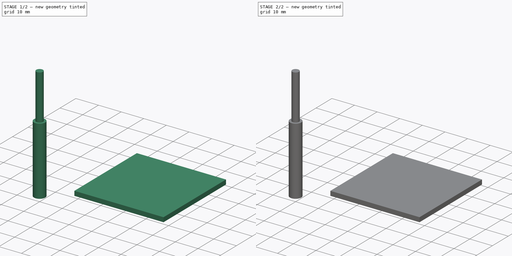
[diagram: build sequence overview — one tinted view per stage of 2, left to right]
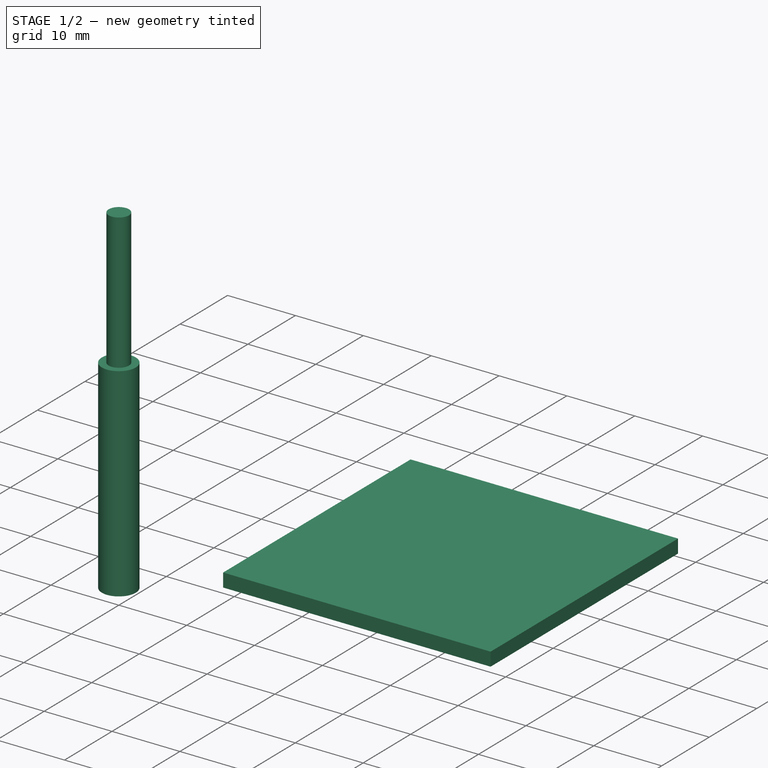
[diagram: stage 1 of 2 — iso view after this stage's code; geometry added in this stage tinted green]
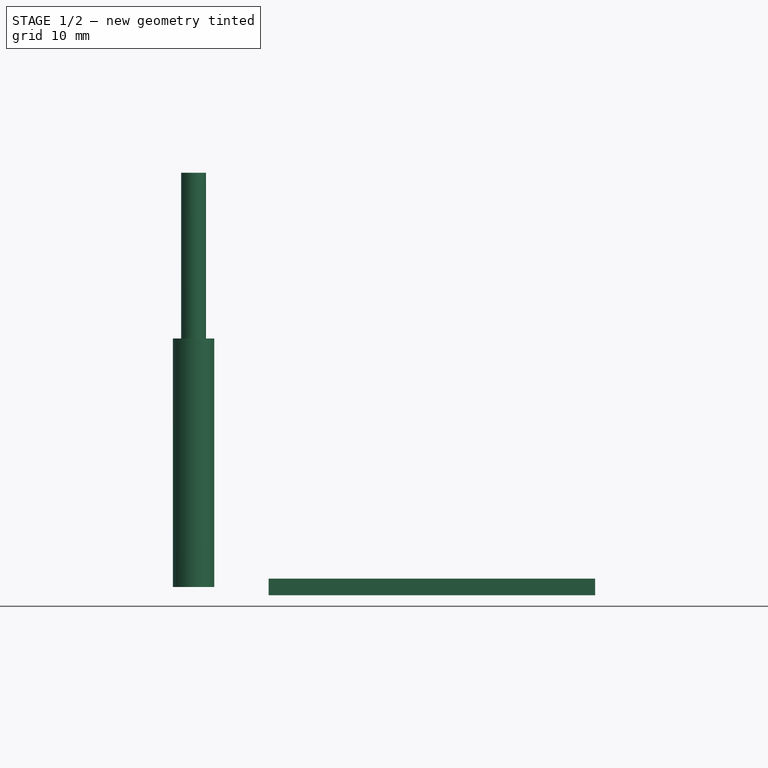
[diagram: stage 1 of 2 — front view after this stage's code; geometry added in this stage tinted green]
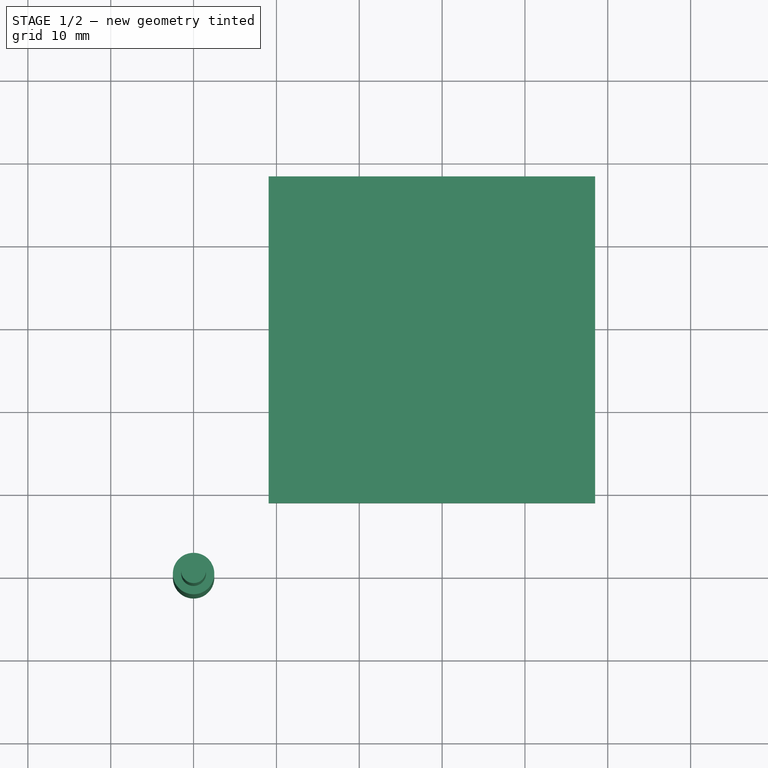
[diagram: stage 1 of 2 — top view after this stage's code; geometry added in this stage tinted green]
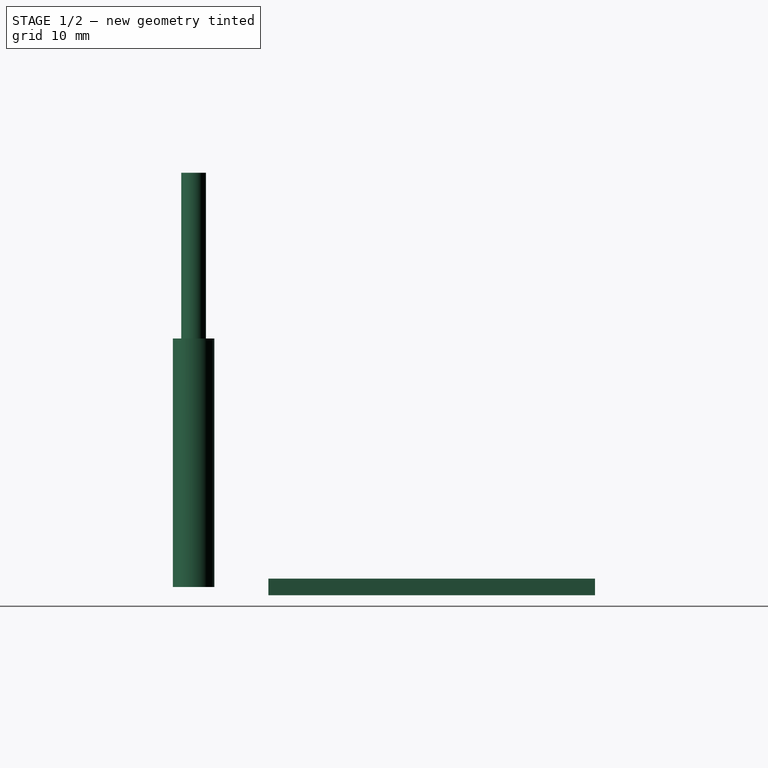
[diagram: stage 1 of 2 — right view after this stage's code; geometry added in this stage tinted green]
FCSTD DOCUMENT  (FreeCAD 0.20R29603 (Git))
Label: KeyboardLabels_ABXY_PSP_StartHomePlay
License: All rights reserved
LicenseURL: http://en.wikipedia.org/wiki/All_rights_reserved
objects: Sketcher::SketchObject×12, Part::Part2DObjectPython×6, App::DocumentObjectGroup×6, Path::FeaturePython×6, Part::FeaturePython×4, App::FeaturePython×2
note: 22 computed .brp shape members not serialized (recipe doc carries the construction recipe); baked Part::Feature solids carry a one-line shape summary decoded from their .brp

FEATURE [Path::FeaturePython] Engrave  # Path/CAM operation (typed FeaturePython)
  Active = true
  ClearanceHeight = 6
  CoolantMode = 0
  CycleTime = Cycletime Error
  FinalDepth = -5
  OpFinalDepth = -5
  OpStartDepth = 0
  OpStockZMax = 1
  OpStockZMin = -1
  OpToolDiameter = 5
  SafeHeight = 4
  StartDepth = 0
  StartVertex = 0
  StepDown = 5
  ToolController = -> TC__Default_Tool
  expr: ClearanceHeight = OpStockZMax + SetupSheet.ClearanceHeightOffset
  expr: FinalDepth = OpFinalDepth
  expr: SafeHeight = OpStockZMax + SetupSheet.SafeHeightOffset
  expr: StartDepth = OpStartDepth
  expr: StepDown = OpToolDiameter
FEATURE [App::DocumentObjectGroup] Operations
  Group = -> [Engrave]
FEATURE [Path::FeaturePython] Job  label="Job_PSP_SYM"  # Path/CAM operation (typed FeaturePython)
  CycleTime = 00:00:00
  Fixtures = G54
  GeometryTolerance = 0.01
  JobType = 0
  Model = -> Model
  Operations = -> Operations
  OrderOutputBy = 0
  PostProcessor = 1
  SetupSheet = -> SetupSheet
  SplitOutput = false
  Stock = -> Stock
  Tools = -> Tools
FEATURE [Part::Part2DObjectPython] Clone2D001  label="Model-psp_symbols_outline002"  # Draft 2D object (typed FeaturePython)
  Fuse = false
  Objects = -> [Sketch013]
  PathResource = Model
  Scale = (1,1,1)
FEATURE [App::DocumentObjectGroup] Model001
  Group = -> [Clone2D001]
FEATURE [Part::FeaturePython] Stock001  # WARN: FeaturePython — macro-defined, semantics opaque (R4)
  Base = -> Model001
  ExtXneg = 1
  ExtXpos = 1
  ExtYneg = 1
  ExtYpos = 1
  ExtZneg = 1
  ExtZpos = 1
  Placement = pos=(10.0608,10.0152,0) rot=(0,0,1;0rad)
  StockType = FromBase
FEATURE [Part::FeaturePython] ToolBit001  label="Endmill001"  # Path/CAM toolbit (typed FeaturePython)
  BitPropertyNames = Chipload | CuttingEdgeHeight | Diameter | Flutes | Length | Material | ShankDiameter | SpindleDirection
  BitShape = <path> 0.20.0/Mod\Path\Tools\Shape\endmill.fcstd
  Chipload = 0
  CuttingEdgeHeight = 30
  Diameter = 5
  Flutes = 0
  Length = 50
  Material = 0
  ShankDiameter = 3
  ShapeName = endmill
  SpindleDirection = 0
FEATURE [Path::FeaturePython] TC__Default_Tool001  label="TC: Default Tool001"  # Path/CAM operation (typed FeaturePython)
  HorizFeed = 0
  HorizRapid = 0
  SpindleDir = 0
  SpindleSpeed = 0
  Tool = -> ToolBit001
  ToolNumber = 1
  VertFeed = 0
  VertRapid = 0
  expr: HorizRapid = SetupSheet001.HorizRapid
  expr: VertRapid = SetupSheet001.VertRapid
FEATURE [App::DocumentObjectGroup] Tools001
  Group = -> [TC__Default_Tool001]
FEATURE [App::FeaturePython] SetupSheet001  # Path/CAM operation (typed FeaturePython)
  ClearanceHeightExpression = OpStockZMax+SetupSheet001.ClearanceHeightOffset
  ClearanceHeightOffset = 5
  CoolantMode = 0
  CoolantModes = None | Flood | Mist
  FinalDepthExpression = OpFinalDepth
  HorizRapid = 0
  SafeHeightExpression = OpStockZMax+SetupSheet001.SafeHeightOffset
  SafeHeightOffset = 3
  StartDepthExpression = OpStartDepth
  StepDownExpression = OpToolDiameter
  VertRapid = 0
FEATURE [Path::FeaturePython] Engrave001  # Path/CAM operation (typed FeaturePython)
  Active = true
  ClearanceHeight = 6
  CoolantMode = 0
  CycleTime = Cycletime Error
  FinalDepth = -5
  OpFinalDepth = -5
  OpStartDepth = 0
  OpStockZMax = 1
  OpStockZMin = -1
  OpToolDiameter = 5
  SafeHeight = 4
  StartDepth = 0
  StartVertex = 0
  StepDown = 5
  ToolController = -> TC__Default_Tool001
  expr: ClearanceHeight = OpStockZMax + SetupSheet001.ClearanceHeightOffset
  expr: FinalDepth = OpFinalDepth
  expr: SafeHeight = OpStockZMax + SetupSheet001.SafeHeightOffset
  expr: StartDepth = OpStartDepth
  expr: StepDown = OpToolDiameter
FEATURE [App::DocumentObjectGroup] Operations001
  Group = -> [Engrave001]
FEATURE [Path::FeaturePython] Job001  # Path/CAM operation (typed FeaturePython)
  CycleTime = 00:00:00
  Fixtures = G54
  GeometryTolerance = 0.01
  JobType = 0
  Model = -> Model001
  Operations = -> Operations001
  OrderOutputBy = 0
  PostProcessor = 1
  SetupSheet = -> SetupSheet001
  SplitOutput = false
  Stock = -> Stock001
  Tools = -> Tools001
FEATURE [Sketcher::SketchObject] Sketch014  label="psp_symbols001"
  FullyConstrained = false
  MapMode = 5
  Support = -> [XY_Plane010]
  sketch-geometry (39):
    g0: Circle CenterX=28.0733 CenterY=38.9348 CenterZ=0 NormalX=0 NormalY=0 NormalZ=1 AngleXU=0 Radius=6
    g1: Circle CenterX=18.0733 CenterY=28.9348 CenterZ=0 NormalX=0 NormalY=0 NormalZ=1 AngleXU=0 Radius=6
    g2: Circle CenterX=28.0733 CenterY=18.9348 CenterZ=0 NormalX=0 NormalY=0 NormalZ=1 AngleXU=0 Radius=6
    g3: Circle CenterX=28.0733 CenterY=18.9348 CenterZ=0 NormalX=0 NormalY=0 NormalZ=1 AngleXU=0 Radius=6
    g4: LineSegment StartX=18.0733 StartY=28.9348 StartZ=0 EndX=28.0733 EndY=28.9348 EndZ=0
    g5: LineSegment StartX=28.0733 StartY=28.9348 StartZ=0 EndX=38.0733 EndY=28.9348 EndZ=0
    g6: LineSegment StartX=28.0733 StartY=28.9348 StartZ=0 EndX=28.0733 EndY=38.9348 EndZ=0
    g7: LineSegment StartX=28.0733 StartY=28.9348 StartZ=0 EndX=28.0733 EndY=18.9348 EndZ=0
    g8: Circle CenterX=38.0733 CenterY=28.9348 CenterZ=0 NormalX=0 NormalY=0 NormalZ=1 AngleXU=0 Radius=6
    g9: LineSegment StartX=36.6319 StartY=34.7591 StartZ=0 EndX=32.8783 EndY=25.82 EndZ=0
    g10: LineSegment StartX=32.8783 StartY=25.82 StartZ=0 EndX=35.4501 EndY=25.82 EndZ=0
    g11: LineSegment StartX=43.2684 StartY=25.82 StartZ=0 EndX=39.5148 EndY=34.7591 EndZ=0
    g12: Circle CenterX=38.0733 CenterY=28.9348 CenterZ=0 NormalX=0 NormalY=0 NormalZ=1 AngleXU=0 Radius=6.05727
    g13: LineSegment StartX=35.4501 StartY=25.82 StartZ=0 EndX=36.6319 EndY=28.0354 EndZ=0
    g14: LineSegment StartX=36.6319 StartY=28.0354 StartZ=0 EndX=38.0733 EndY=28.0354 EndZ=0
    g15: LineSegment StartX=38.0733 StartY=28.0354 StartZ=0 EndX=39.5148 EndY=28.0354 EndZ=0
    g16: LineSegment StartX=39.5148 StartY=28.0354 StartZ=0 EndX=40.6965 EndY=25.82 EndZ=0
    g17: LineSegment StartX=40.6965 StartY=25.82 StartZ=0 EndX=43.2684 EndY=25.82 EndZ=0
    g18: LineSegment StartX=36.6319 StartY=34.7591 StartZ=0 EndX=39.5148 EndY=34.7591 EndZ=0
    g19: LineSegment StartX=25.0057 StartY=24.0914 StartZ=0 EndX=29.7113 EndY=24.0914 EndZ=0
    g20: LineSegment StartX=32.1836 StartY=21.6191 StartZ=0 EndX=32.1836 EndY=21.0295 EndZ=0
    g21: LineSegment StartX=29.7634 StartY=13.7783 StartZ=0 EndX=25.0057 EndY=13.7783 EndZ=0
    g22: LineSegment StartX=25.0057 StartY=13.7783 StartZ=0 EndX=25.0057 EndY=24.0914 EndZ=0
    g23: ArcOfCircle CenterX=29.7113 CenterY=21.6191 CenterZ=0 NormalX=0 NormalY=0 NormalZ=1 AngleXU=0 Radius=2.47232 StartAngle=1e-16 EndAngle=1.5708
    g24: ArcOfCircle CenterX=29.7634 CenterY=16.2506 CenterZ=0 NormalX=0 NormalY=0 NormalZ=1 AngleXU=0 Radius=2.47232 StartAngle=4.71239 EndAngle=6.07751
    g25: LineSegment StartX=32.1836 StartY=16.3352 StartZ=0 EndX=32.1836 EndY=15.7457 EndZ=0
    g26: ArcOfCircle CenterX=29.7634 CenterY=21.0295 CenterZ=0 NormalX=0 NormalY=0 NormalZ=1 AngleXU=0 Radius=2.42021 StartAngle=4.71239 EndAngle=6.28319
    g27: ArcOfCircle CenterX=29.7634 CenterY=16.3352 CenterZ=0 NormalX=0 NormalY=0 NormalZ=1 AngleXU=0 Radius=2.42021 StartAngle=-9e-16 EndAngle=1.5708
    g28: LineSegment StartX=29.7634 StartY=18.7554 StartZ=0 EndX=29.7634 EndY=18.6093 EndZ=0
    g29: LineSegment StartX=24.0605 StartY=34.4743 StartZ=0 EndX=24.0604 EndY=34.4743 EndZ=0
    g30: LineSegment StartX=23.9761 StartY=43.3181 StartZ=0 EndX=25.8878 EndY=44.5226 EndZ=0
    g31: LineSegment StartX=25.8878 StartY=44.5226 StartZ=0 EndX=32.1706 EndY=34.5516 EndZ=0
    g32: LineSegment StartX=32.1706 StartY=34.5516 StartZ=0 EndX=30.2589 EndY=33.3471 EndZ=0
    g33: LineSegment StartX=30.2589 StartY=33.3471 StartZ=0 EndX=23.9761 EndY=43.3181 EndZ=0
    g34: LineSegment StartX=25.0354 StartY=33.7608 StartZ=0 EndX=25.0354 EndY=45.3256 EndZ=0
    g35: LineSegment StartX=25.0354 StartY=45.3256 StartZ=0 EndX=31.1113 EndY=44.1089 EndZ=0
    g36: LineSegment StartX=31.1113 StartY=44.1089 StartZ=0 EndX=31.1113 EndY=33.5618 EndZ=0
    g37: LineSegment StartX=31.1113 StartY=33.5618 StartZ=0 EndX=25.0354 EndY=33.7608 EndZ=0
    g38: GeomPoint X=28.0733 Y=38.9348 Z=0
  constraints (89):
    c: Equal(g1,g2)
    c: Equal(g3,g2)
    c: Coincident(g2,g3)
    c: Coincident(g4,g1)
    c: Coincident(g5,g4)
    c: Coincident(g6,g4)
    c: Coincident(g6,g0)
    c: Vertical(g6)
    c: Coincident(g7,g4)
    c: Coincident(g7,g2)
    c: Vertical(g7)
    c: Equal(g5,g7)
    c: Equal(g7,g4)
    c: Equal(g4,g6)
    c: Horizontal(g5)
    c: Horizontal(g4)
    c: DistanceY(g6,g6) = 10
    c: Coincident(g8,g5)
    c: Equal(g8,g0)
    c: Equal(g0,g1)
    c: Radius(g0) = 6
    c: Coincident(g9,g10)
    c: Coincident(g17,g11)
    c: PointOnObject(g9,g12)
    c: PointOnObject(g17,g12)
    c: Coincident(g12,g5)
    c: Coincident(g13,g14)
    c: Horizontal(g14)
    c: Coincident(g14,g15)
    c: Coincident(g15,g16)
    c: Equal(g15,g14)
    c: Equal(g16,g13)
    c: Horizontal(g15)
    c: Coincident(g10,g13)
    c: Coincident(g17,g16)
    c: Equal(g17,g10)
    c: Horizontal(g17)
    c: Horizontal(g10)
    c: Horizontal(g18)
    c: Coincident(g11,g18)
    c: Coincident(g9,g18)
    c: PointOnObject(g9,g8)
    c: Vertical(g14,g5)
    c: Coincident(g21,g22)
    c: Coincident(g22,g19)
    c: Horizontal(g19)
    c: Horizontal(g21)
    c: Vertical(g20)
    c: Vertical(g22)
    c: PointOnObject(g19,g2)
    c: Tangent(g19,g23) = 1.5708
    c: Tangent(g20,g23) = 1.5708
    c: Tangent(g21,g24) = 1.5708
    c: Coincident(g25,g24) = 1.5708
    c: Tangent(g20,g26) = 1.5708
    c: Tangent(g25,g27) = 1.5708
    c: Vertical(g25)
    c: PointOnObject(g21,g2)
    c: Equal(g24,g23)
    c: Equal(g27,g26)
    c: Coincident(g28,g27)
    c: Coincident(g28,g26)
    c: Vertical(g28)
    c: PointOnObject(g29,g0)
    c: PointOnObject(g29,g0)
    c: Tangent(g29,g0)
    c: Coincident(g30,g31)
    c: Coincident(g31,g32)
    c: Coincident(g32,g33)
    c: Coincident(g33,g30)
    c: PointOnObject(g30,g0)
    c: PointOnObject(g31,g0)
    c: PointOnObject(g32,g0)
    c: PointOnObject(g30,g0)
    c: Equal(g31,g33)
    c: Equal(g32,g30)
    c: Vertical(g24,g27)
    c: Vertical(g27,g26)
    c: Equal(g25,g20)
    c: Vertical(g26,g26)
    c: Vertical(g13,g9)
    c: Vertical(g15,g11)
    c: Coincident(g34,g35)
    c: Coincident(g35,g36)
    c: Coincident(g36,g37)
    c: Coincident(g37,g34)
    c: Symmetric(g35,g34,g38)
    c: Coincident(g38,g0)
    c: PointOnObject(g35,g0)
note: 2 file-system paths scrubbed to <path> (originals preserved in the JSON sidecar)
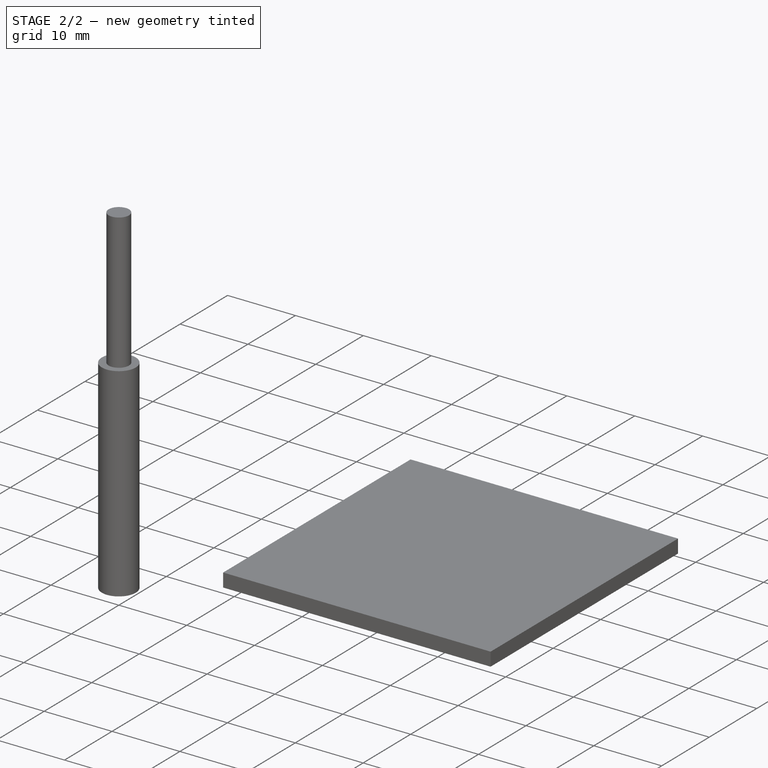
[diagram: stage 2 of 2 — iso view after this stage's code; geometry added in this stage tinted green]
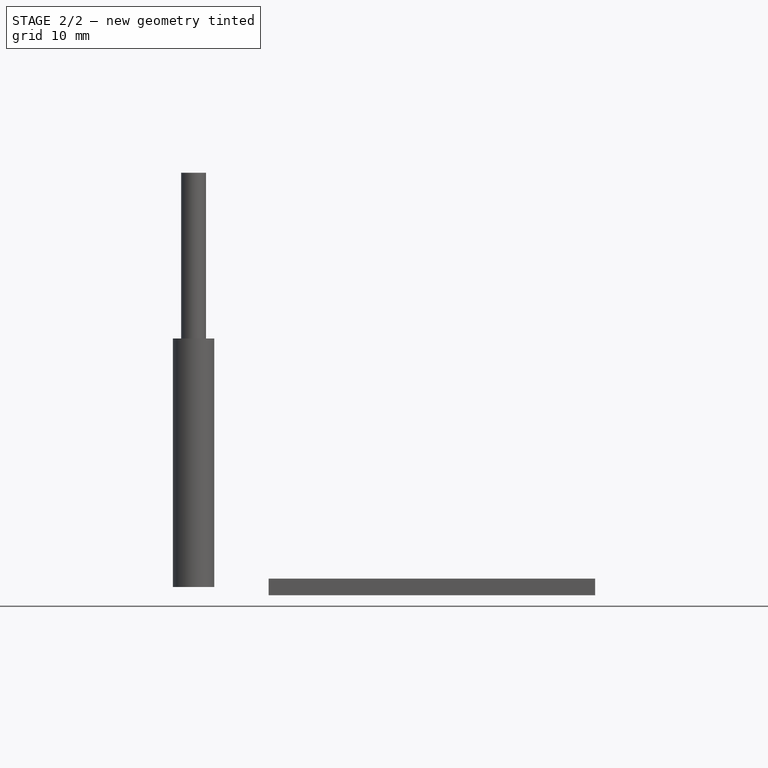
[diagram: stage 2 of 2 — front view after this stage's code; geometry added in this stage tinted green]
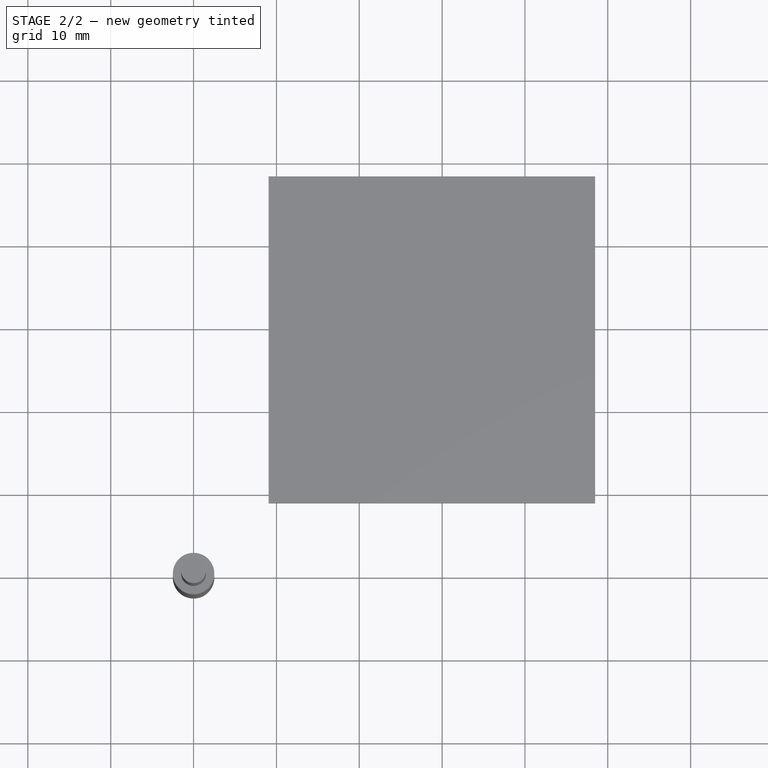
[diagram: stage 2 of 2 — top view after this stage's code; geometry added in this stage tinted green]
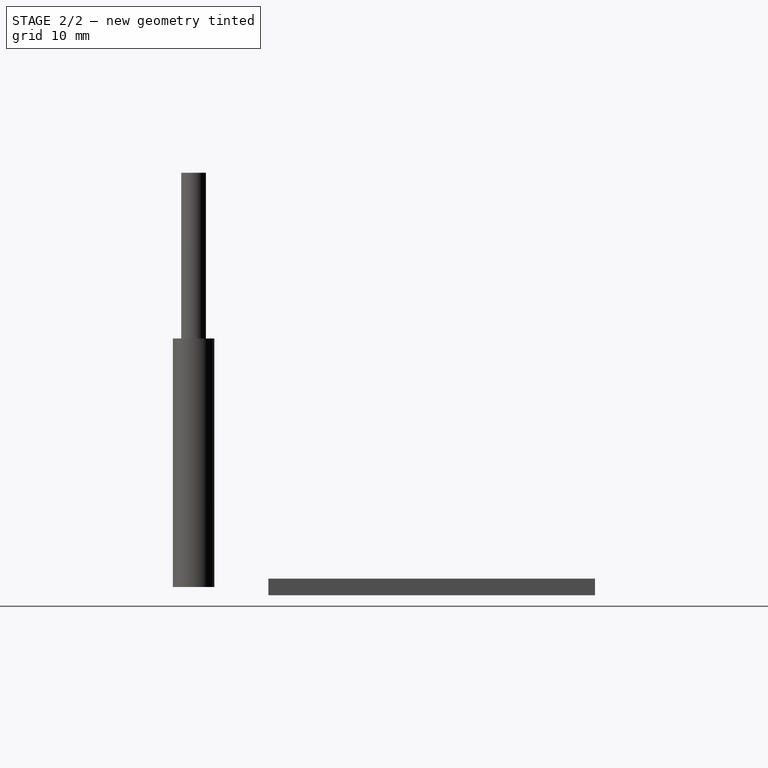
[diagram: stage 2 of 2 — right view after this stage's code; geometry added in this stage tinted green]
FEATURE [Sketcher::SketchObject] Sketch  label="500x500"
  FullyConstrained = true
  MapMode = 5
  Support = -> [XY_Plane]
  sketch-geometry (6):
    g0: LineSegment StartX=0 StartY=0 StartZ=0 EndX=500 EndY=0 EndZ=0
    g1: LineSegment StartX=500 StartY=0 StartZ=0 EndX=500 EndY=500 EndZ=0
    g2: LineSegment StartX=0 StartY=500 StartZ=0 EndX=0 EndY=0 EndZ=0
    g3: LineSegment StartX=500 StartY=500 StartZ=0 EndX=250 EndY=500 EndZ=0
    g4: LineSegment StartX=250 StartY=500 StartZ=0 EndX=0 EndY=500 EndZ=0
    g5: LineSegment StartX=250 StartY=500 StartZ=0 EndX=250 EndY=0 EndZ=0
  constraints (17):
    c: Coincident(g0,g1)
    c: Coincident(g2,g0)
    c: Horizontal(g0)
    c: Vertical(g1)
    c: Vertical(g2)
    c: Coincident(g0,g-1)
    c: DistanceX(g0,g0) = 500
    c: DistanceY(g2,g2) = 500
    c: Coincident(g3,g1)
    c: Horizontal(g3)
    c: Coincident(g4,g3)
    c: Coincident(g4,g2)
    c: Horizontal(g4)
    c: Equal(g3,g4)
    c: Coincident(g5,g3)
    c: PointOnObject(g5,g0)
    c: Vertical(g5)
FEATURE [Sketcher::SketchObject] Sketch003  label="A005"
  FullyConstrained = true
  MapMode = 5
  Support = -> [XY_Plane002]
  sketch-geometry (4):
    g0: LineSegment StartX=0 StartY=0 StartZ=0 EndX=297 EndY=0 EndZ=0
    g1: LineSegment StartX=297 StartY=0 StartZ=0 EndX=297 EndY=210 EndZ=0
    g2: LineSegment StartX=297 StartY=210 StartZ=0 EndX=0 EndY=210 EndZ=0
    g3: LineSegment StartX=0 StartY=210 StartZ=0 EndX=0 EndY=0 EndZ=0
  constraints (11):
    c: Coincident(g0,g1)
    c: Coincident(g1,g2)
    c: Coincident(g2,g3)
    c: Coincident(g3,g0)
    c: Horizontal(g0)
    c: Horizontal(g2)
    c: Vertical(g1)
    c: Vertical(g3)
    c: Coincident(g0,g-1)
    c: DistanceX(g0,g0) = 297
    c: DistanceY(g3,g3) = 210
FEATURE [Sketcher::SketchObject] Sketch004  label="psp_symbols"
  FullyConstrained = false
  MapMode = 5
  Support = -> [XY_Plane003]
  sketch-geometry (24):
    g0: LineSegment StartX=29.2898 StartY=44.5014 StartZ=0 EndX=24.3832 EndY=36.0029 EndZ=0
    g1: LineSegment StartX=24.3832 StartY=36.0029 StartZ=0 EndX=34.1965 EndY=36.0029 EndZ=0
    g2: LineSegment StartX=34.1965 StartY=36.0029 StartZ=0 EndX=29.2898 EndY=44.5014 EndZ=0
    g3: Circle CenterX=29.2898 CenterY=38.8358 CenterZ=0 NormalX=0 NormalY=0 NormalZ=1 AngleXU=0 Radius=5.66569
    g4: LineSegment StartX=23.2898 StartY=32.8358 StartZ=0 EndX=15.2898 EndY=32.8358 EndZ=0
    g5: LineSegment StartX=15.2898 StartY=32.8358 StartZ=0 EndX=15.2898 EndY=24.8358 EndZ=0
    g6: LineSegment StartX=15.2898 StartY=24.8358 StartZ=0 EndX=23.2898 EndY=24.8358 EndZ=0
    g7: LineSegment StartX=23.2898 StartY=24.8358 StartZ=0 EndX=23.2898 EndY=32.8358 EndZ=0
    g8: Circle CenterX=19.2898 CenterY=28.8358 CenterZ=0 NormalX=0 NormalY=0 NormalZ=1 AngleXU=0 Radius=5.65685
    g9: LineSegment StartX=31.3711 StartY=24.0958 StartZ=0 EndX=27.2085 EndY=24.0958 EndZ=0
    g10: LineSegment StartX=27.2085 StartY=24.0958 StartZ=0 EndX=27.2085 EndY=13.5757 EndZ=0
    g11: LineSegment StartX=27.2085 StartY=13.5757 StartZ=0 EndX=31.3711 EndY=13.5757 EndZ=0
    g12: LineSegment StartX=31.3711 StartY=13.5757 StartZ=0 EndX=31.3711 EndY=24.0958 EndZ=0
    g13: Circle CenterX=29.2898 CenterY=18.8358 CenterZ=0 NormalX=0 NormalY=0 NormalZ=1 AngleXU=0 Radius=5.65685
    g14: LineSegment StartX=34.5499 StartY=20.917 StartZ=0 EndX=24.0298 EndY=20.917 EndZ=0
    g15: LineSegment StartX=24.0298 StartY=20.917 StartZ=0 EndX=24.0298 EndY=16.7545 EndZ=0
    g16: LineSegment StartX=24.0298 StartY=16.7545 StartZ=0 EndX=34.5499 EndY=16.7545 EndZ=0
    g17: LineSegment StartX=34.5499 StartY=16.7545 StartZ=0 EndX=34.5499 EndY=20.917 EndZ=0
    g18: Circle CenterX=29.2898 CenterY=18.8358 CenterZ=0 NormalX=0 NormalY=0 NormalZ=1 AngleXU=0 Radius=5.65685
    g19: Circle CenterX=39.2898 CenterY=28.8358 CenterZ=0 NormalX=0 NormalY=0 NormalZ=1 AngleXU=0 Radius=4.83996
    g20: LineSegment StartX=19.2898 StartY=28.8358 StartZ=0 EndX=29.2898 EndY=28.8358 EndZ=0
    g21: LineSegment StartX=29.2898 StartY=28.8358 StartZ=0 EndX=39.2898 EndY=28.8358 EndZ=0
    g22: LineSegment StartX=29.2898 StartY=28.8358 StartZ=0 EndX=29.2898 EndY=38.8358 EndZ=0
    g23: LineSegment StartX=29.2898 StartY=28.8358 StartZ=0 EndX=29.2898 EndY=18.8358 EndZ=0
  constraints (63):
    c: Coincident(g0,g1)
    c: Coincident(g1,g2)
    c: Coincident(g2,g0)
    c: Equal(g0,g1)
    c: Equal(g0,g2)
    c: PointOnObject(g0,g3)
    c: PointOnObject(g1,g3)
    c: PointOnObject(g2,g3)
    c: Coincident(g4,g5)
    c: Coincident(g5,g6)
    c: Coincident(g6,g7)
    c: Coincident(g7,g4)
    c: Equal(g4,g5)
    c: Equal(g4,g6)
    c: Equal(g4,g7)
    c: PointOnObject(g4,g8)
    c: PointOnObject(g5,g8)
    c: PointOnObject(g6,g8)
    c: PointOnObject(g7,g8)
    c: Horizontal(g6)
    c: Coincident(g9,g10)
    c: Coincident(g10,g11)
    c: Coincident(g11,g12)
    c: Coincident(g12,g9)
    c: Equal(g9,g11)
    c: PointOnObject(g9,g13)
    c: PointOnObject(g10,g13)
    c: PointOnObject(g11,g13)
    c: PointOnObject(g12,g13)
    c: Coincident(g14,g15)
    c: Coincident(g15,g16)
    c: Coincident(g16,g17)
    c: Coincident(g17,g14)
    c: Equal(g14,g16)
    c: PointOnObject(g14,g18)
    c: PointOnObject(g15,g18)
    c: PointOnObject(g16,g18)
    c: PointOnObject(g17,g18)
    c: Equal(g8,g13)
    c: Horizontal(g1)
    c: Parallel(g9,g11)
    c: Horizontal(g11)
    c: Horizontal(g16)
    c: Equal(g17,g9)
    c: Horizontal(g14)
    c: Equal(g18,g13)
    c: DistanceX(g4,g4) = 8
    c: Coincident(g13,g18)
    c: Coincident(g20,g8)
    c: Coincident(g21,g20)
    c: Coincident(g21,g19)
    c: Coincident(g22,g20)
    c: Coincident(g22,g3)
    c: Vertical(g22)
    c: Coincident(g23,g20)
    c: Coincident(g23,g13)
    c: Vertical(g23)
    c: Equal(g21,g23)
    c: Equal(g23,g20)
    c: Equal(g20,g22)
    c: Horizontal(g21)
    c: Horizontal(g20)
    c: DistanceY(g22,g22) = 10
FEATURE [Part::Part2DObjectPython] ShapeString001  label="A"  # Draft 2D object (typed FeaturePython)
  FontFile = <userpath>/Documents/ArchadeCabinet/IND_Laser/font/Karla_BoldStencil.ttf
  MakeFace = true
  Placement = pos=(60.48,64.77,0) rot=(0,0,1;0rad)
  Size = 7
  String = A
  Tracking = 0
FEATURE [Part::Part2DObjectPython] ShapeString002  label="B"  # Draft 2D object (typed FeaturePython)
  FontFile = <userpath>/Documents/ArchadeCabinet/IND_Laser/font/Karla_BoldStencil.ttf
  MakeFace = true
  Placement = pos=(43.81,47.48,0) rot=(0,0,1;0rad)
  Size = 7
  String = B
  Tracking = 0
FEATURE [Part::Part2DObjectPython] ShapeString003  label="Y"  # Draft 2D object (typed FeaturePython)
  FontFile = <userpath>/Documents/ArchadeCabinet/IND_Laser/font/Karla_BoldStencil.ttf
  MakeFace = true
  Placement = pos=(27.08,63.3,0) rot=(0,0,1;0rad)
  Size = 7
  String = Y
  Tracking = 0
FEATURE [Part::Part2DObjectPython] ShapeString004  label="X"  # Draft 2D object (typed FeaturePython)
  FontFile = <userpath>/Documents/ArchadeCabinet/IND_Laser/font/Karla_BoldStencil.ttf
  MakeFace = true
  Placement = pos=(44.11,79.73,0) rot=(0,0,1;0rad)
  Size = 7
  String = X
  Tracking = 0
FEATURE [Sketcher::SketchObject] Sketch006  label="psp_symbols_outline"
  FullyConstrained = true
  MapMode = 5
  Support = -> [XY_Plane005]
  sketch-geometry (16):
    g0: ArcOfCircle CenterX=450 CenterY=55 CenterZ=0 NormalX=0 NormalY=0 NormalZ=1 AngleXU=0 Radius=11.1803 StartAngle=2.67795 EndAngle=6.74683
    g1: ArcOfCircle CenterX=465 CenterY=70 CenterZ=0 NormalX=0 NormalY=0 NormalZ=1 AngleXU=0 Radius=11.1803 StartAngle=4.24874 EndAngle=8.31763
    g2: ArcOfCircle CenterX=450 CenterY=85 CenterZ=0 NormalX=0 NormalY=0 NormalZ=1 AngleXU=0 Radius=11.1803 StartAngle=5.81954 EndAngle=9.88843
    g3: ArcOfCircle CenterX=435 CenterY=70 CenterZ=0 NormalX=0 NormalY=0 NormalZ=1 AngleXU=0 Radius=11.1803 StartAngle=1.10715 EndAngle=5.17604
    g4: LineSegment StartX=435 StartY=70 StartZ=0 EndX=450 EndY=70 EndZ=0
    g5: LineSegment StartX=450 StartY=70 StartZ=0 EndX=450 EndY=85 EndZ=0
    g6: LineSegment StartX=450 StartY=70 StartZ=0 EndX=465 EndY=70 EndZ=0
    g7: LineSegment StartX=450 StartY=55 StartZ=0 EndX=450 EndY=70 EndZ=0
    g8: ArcOfCircle CenterX=50 CenterY=55 CenterZ=0 NormalX=0 NormalY=0 NormalZ=1 AngleXU=0 Radius=11.1803 StartAngle=2.67795 EndAngle=6.74683
    g9: ArcOfCircle CenterX=65 CenterY=70 CenterZ=0 NormalX=0 NormalY=0 NormalZ=1 AngleXU=0 Radius=11.1803 StartAngle=4.24874 EndAngle=8.31763
    g10: ArcOfCircle CenterX=50 CenterY=85 CenterZ=0 NormalX=0 NormalY=0 NormalZ=1 AngleXU=0 Radius=11.1803 StartAngle=5.81954 EndAngle=9.88843
    g11: ArcOfCircle CenterX=35 CenterY=70 CenterZ=0 NormalX=0 NormalY=0 NormalZ=1 AngleXU=0 Radius=11.1803 StartAngle=1.10715 EndAngle=5.17604
    g12: LineSegment StartX=35 StartY=70 StartZ=0 EndX=50 EndY=70 EndZ=0
    g13: LineSegment StartX=50 StartY=70 StartZ=0 EndX=50 EndY=85 EndZ=0
    g14: LineSegment StartX=50 StartY=70 StartZ=0 EndX=65 EndY=70 EndZ=0
    g15: LineSegment StartX=50 StartY=55 StartZ=0 EndX=50 EndY=70 EndZ=0
  constraints (52):
    c: Horizontal(g4)
    c: Coincident(g6,g4)
    c: Horizontal(g6)
    c: Coincident(g7,g4)
    c: Vertical(g7)
    c: Coincident(g5,g4)
    c: Vertical(g5)
    c: Equal(g4,g6)
    c: Equal(g7,g6)
    c: Equal(g7,g5)
    c: Distance(g4) = 15
    c: Coincident(g2,g3)
    c: Coincident(g1,g0)
    c: Coincident(g3,g0)
    c: Coincident(g1,g2)
    c: Horizontal(g1,g3)
    c: Vertical(g3,g3)
    c: Vertical(g1,g1)
    c: DistanceX(g3,g1) = 20
    c: DistanceY(g3,g3) = 20
    c: Equal(g3,g0)
    c: Coincident(g5,g2)
    c: Coincident(g4,g3)
    c: Coincident(g1,g6)
    c: DistanceX(g-1,g4) = 450
    c: DistanceY(g-1,g4) = 70
    c: Horizontal(g12)
    c: Coincident(g14,g12)
    c: Horizontal(g14)
    c: Coincident(g15,g12)
    c: Vertical(g15)
    c: Coincident(g13,g12)
    c: Vertical(g13)
    c: Equal(g12,g14)
    c: Equal(g15,g14)
    c: Equal(g15,g13)
    c: Equal(g4,g12) = 15
    c: Coincident(g10,g11)
    c: Coincident(g9,g8)
    c: Coincident(g11,g8)
    c: Coincident(g9,g10)
    c: Horizontal(g9,g11)
    c: Vertical(g11,g11)
    c: Vertical(g9,g9)
    c: DistanceX(g11,g9) = 20
    c: Equal(g3,g11) = 20
    c: Equal(g11,g8)
    c: Coincident(g13,g10)
    c: Coincident(g12,g11)
    c: Coincident(g9,g14)
    c: Horizontal(g3,g9)
    c: DistanceX(g-1,g12) = 50
FEATURE [Sketcher::SketchObject] Sketch007  label="Construction Lines"
  ExternalGeometry = -> [Sketch]
  FullyConstrained = true
  sketch-geometry (3):
    g0: LineSegment StartX=0 StartY=100 StartZ=0 EndX=500 EndY=100 EndZ=0
    g1: LineSegment StartX=0 StartY=10 StartZ=0 EndX=500 EndY=10 EndZ=0
    g2: LineSegment StartX=10 StartY=0 StartZ=0 EndX=10 EndY=200 EndZ=0
  constraints (12):
    c: Horizontal(g0)
    c: PointOnObject(g0,g-2)
    c: PointOnObject(g0,g-3)
    c: DistanceY(g-1,g0) = 100
    c: PointOnObject(g1,g-2)
    c: PointOnObject(g1,g-3)
    c: Horizontal(g1)
    c: DistanceY(g-1,g1) = 10
    c: PointOnObject(g2,g-1)
    c: Vertical(g2)
    c: DistanceY(g2,g2) = 200
    c: DistanceX(g-1,g2) = 10
FEATURE [Sketcher::SketchObject] Sketch008  label="A4"
  FullyConstrained = true
  MapMode = 5
  Support = -> [XY_Plane006]
  sketch-geometry (4):
    g0: LineSegment StartX=0 StartY=0 StartZ=0 EndX=297 EndY=0 EndZ=0
    g1: LineSegment StartX=297 StartY=0 StartZ=0 EndX=297 EndY=210 EndZ=0
    g2: LineSegment StartX=297 StartY=210 StartZ=0 EndX=0 EndY=210 EndZ=0
    g3: LineSegment StartX=0 StartY=210 StartZ=0 EndX=0 EndY=0 EndZ=0
  constraints (11):
    c: Coincident(g0,g1)
    c: Coincident(g1,g2)
    c: Coincident(g2,g3)
    c: Coincident(g3,g0)
    c: Horizontal(g0)
    c: Horizontal(g2)
    c: Vertical(g1)
    c: Vertical(g3)
    c: Coincident(g0,g-1)
    c: DistanceX(g0,g0) = 297
    c: DistanceY(g3,g3) = 210
FEATURE [Sketcher::SketchObject] Sketch009  label="Symbols_Start_Play"
  FullyConstrained = false
  MapMode = 2
  Support = -> [Sketch008]
  sketch-geometry (19):
    g0: LineSegment StartX=229.3 StartY=80.5616 StartZ=0 EndX=219.22 EndY=86.3813 EndZ=0
    g1: LineSegment StartX=219.22 StartY=86.3813 StartZ=0 EndX=219.22 EndY=74.7419 EndZ=0
    g2: LineSegment StartX=219.22 StartY=74.7419 StartZ=0 EndX=229.3 EndY=80.5616 EndZ=0
    g3: Circle CenterX=222.58 CenterY=80.5616 CenterZ=0 NormalX=0 NormalY=0 NormalZ=1 AngleXU=0 Radius=6.72
    g4: LineSegment StartX=266.053 StartY=80.5602 StartZ=0 EndX=255.973 EndY=86.3799 EndZ=0
    g5: LineSegment StartX=255.973 StartY=86.3799 StartZ=0 EndX=255.973 EndY=74.7405 EndZ=0
    g6: LineSegment StartX=255.973 StartY=74.7405 StartZ=0 EndX=266.053 EndY=80.5602 EndZ=0
    g7: Circle CenterX=259.333 CenterY=80.5602 CenterZ=0 NormalX=0 NormalY=0 NormalZ=1 AngleXU=0 Radius=6.72
    g8: LineSegment StartX=229.3 StartY=86.3813 StartZ=0 EndX=232.23 EndY=86.3813 EndZ=0
    g9: LineSegment StartX=232.23 StartY=86.3813 StartZ=0 EndX=232.23 EndY=74.7419 EndZ=0
    g10: LineSegment StartX=232.23 StartY=74.7419 StartZ=0 EndX=229.3 EndY=74.7419 EndZ=0
    g11: LineSegment StartX=229.3 StartY=74.7419 StartZ=0 EndX=229.3 EndY=86.3813 EndZ=0
    g12: LineSegment StartX=238.276 StartY=74.2691 StartZ=0 EndX=248.276 EndY=74.2691 EndZ=0
    g13: LineSegment StartX=248.276 StartY=74.2691 StartZ=0 EndX=248.276 EndY=82.2691 EndZ=0
    g14: LineSegment StartX=248.276 StartY=82.2691 StartZ=0 EndX=249.923 EndY=82.2691 EndZ=0
    g15: LineSegment StartX=249.923 StartY=82.2691 StartZ=0 EndX=243.276 EndY=88.2691 EndZ=0
    g16: LineSegment StartX=243.276 StartY=88.2691 StartZ=0 EndX=236.629 EndY=82.2691 EndZ=0
    g17: LineSegment StartX=236.629 StartY=82.2691 StartZ=0 EndX=238.276 EndY=82.2691 EndZ=0
    g18: LineSegment StartX=238.276 StartY=82.2691 StartZ=0 EndX=238.276 EndY=74.2691 EndZ=0
  constraints (50):
    c: Coincident(g0,g1)
    c: Coincident(g1,g2)
    c: Coincident(g2,g0)
    c: Equal(g0,g1)
    c: Equal(g0,g2)
    c: PointOnObject(g0,g3)
    c: PointOnObject(g1,g3)
    c: PointOnObject(g2,g3)
    c: Vertical(g1)
    c: Coincident(g4,g5)
    c: Coincident(g5,g6)
    c: Coincident(g6,g4)
    c: Equal(g4,g5)
    c: Equal(g4,g6)
    c: PointOnObject(g4,g7)
    c: PointOnObject(g5,g7)
    c: PointOnObject(g6,g7)
    c: Equal(g5,g1)
    c: Vertical(g5)
    c: Coincident(g8,g9)
    c: Coincident(g9,g10)
    c: Coincident(g10,g11)
    c: Coincident(g11,g8)
    c: Horizontal(g8)
    c: Horizontal(g10)
    c: Vertical(g9)
    c: Vertical(g11)
    c: Horizontal(g10,g1)
    c: Horizontal(g8,g0)
    c: Horizontal(g12)
    c: Coincident(g12,g13)
    c: Vertical(g13)
    c: Coincident(g13,g14)
    c: Coincident(g14,g15)
    c: Coincident(g15,g16)
    c: Coincident(g16,g17)
    c: Coincident(g17,g18)
    c: Coincident(g18,g12)
    c: Vertical(g18)
    c: Horizontal(g17)
    c: Horizontal(g14)
    c: Horizontal(g13,g17)
    c: Equal(g14,g17)
    c: Equal(g15,g16)
    c: PointOnObject(g0,g11)
    c: Diameter(g3) = 13.44
    c: DistanceX(g8,g8) = 2.93
    c: DistanceX(g12,g12) = 10
    c: DistanceY(g18,g18) = 8
    c: DistanceY(g16,g15) = 6
FEATURE [Sketcher::SketchObject] Sketch010  label="psp_symbols_outline001"
  ExternalGeometry = -> [Sketch007]
  FullyConstrained = false
  MapMode = 5
  Support = -> [XY_Plane007]
  sketch-geometry (13):
    g0: LineSegment StartX=10 StartY=47.8531 StartZ=0 EndX=47.8531 EndY=47.8531 EndZ=0
    g1: LineSegment StartX=47.8531 StartY=47.8531 StartZ=0 EndX=47.8531 EndY=10 EndZ=0
    g2: LineSegment StartX=47.8531 StartY=10 StartZ=0 EndX=10 EndY=10 EndZ=0
    g3: LineSegment StartX=10 StartY=10 StartZ=0 EndX=10 EndY=47.8531 EndZ=0
    g4: LineSegment StartX=47.8531 StartY=36.7662 StartZ=0 EndX=36.7662 EndY=47.8531 EndZ=0
    g5: LineSegment StartX=36.7662 StartY=47.8531 StartZ=0 EndX=21.0869 EndY=47.8531 EndZ=0
    g6: LineSegment StartX=21.0869 StartY=47.8531 StartZ=0 EndX=10 EndY=36.7662 EndZ=0
    g7: LineSegment StartX=10 StartY=36.7662 StartZ=0 EndX=10 EndY=21.0869 EndZ=0
    g8: LineSegment StartX=10 StartY=21.0869 StartZ=0 EndX=21.0869 EndY=10 EndZ=0
    g9: LineSegment StartX=21.0869 StartY=10 StartZ=0 EndX=36.7662 EndY=10 EndZ=0
    g10: LineSegment StartX=36.7662 StartY=10 StartZ=0 EndX=47.8531 EndY=21.0869 EndZ=0
    g11: LineSegment StartX=47.8531 StartY=21.0869 StartZ=0 EndX=47.8531 EndY=36.7662 EndZ=0
    g12: Circle CenterX=28.9265 CenterY=28.9265 CenterZ=0 NormalX=0 NormalY=0 NormalZ=1 AngleXU=0 Radius=20.4859
  constraints (32):
    c: Coincident(g0,g1)
    c: Coincident(g1,g2)
    c: Coincident(g2,g3)
    c: Coincident(g3,g0)
    c: Horizontal(g0)
    c: Horizontal(g2)
    c: Vertical(g1)
    c: Vertical(g3)
    c: PointOnObject(g0,g-4)
    c: PointOnObject(g1,g-3)
    c: Equal(g1,g0)
    c: Coincident(g4,g5)
    c: Coincident(g5,g6)
    c: Coincident(g6,g7)
    c: Coincident(g7,g8)
    c: Coincident(g8,g9)
    c: Coincident(g9,g10)
    c: Coincident(g10,g11)
    c: Coincident(g11,g4)
    c: Equal(g4, g5-g11) x7
    c: PointOnObject(g4,g12)
    c: PointOnObject(g5,g12)
    c: PointOnObject(g6,g12)
    c: PointOnObject(g7,g12)
    c: PointOnObject(g8,g12)
    c: PointOnObject(g9,g12)
    c: PointOnObject(g10,g12)
    c: PointOnObject(g11,g12)
    c: Parallel(g11,g1)
    c: PointOnObject(g4,g0)
    c: PointOnObject(g9,g2)
    c: PointOnObject(g4,g1)
FEATURE [Sketcher::SketchObject] Sketch011  label="500x501"
  FullyConstrained = true
  MapMode = 5
  Support = -> [XY_Plane008]
  sketch-geometry (6):
    g0: LineSegment StartX=0 StartY=0 StartZ=0 EndX=500 EndY=0 EndZ=0
    g1: LineSegment StartX=500 StartY=0 StartZ=0 EndX=500 EndY=500 EndZ=0
    g2: LineSegment StartX=0 StartY=500 StartZ=0 EndX=0 EndY=0 EndZ=0
    g3: LineSegment StartX=500 StartY=500 StartZ=0 EndX=250 EndY=500 EndZ=0
    g4: LineSegment StartX=250 StartY=500 StartZ=0 EndX=0 EndY=500 EndZ=0
    g5: LineSegment StartX=250 StartY=500 StartZ=0 EndX=250 EndY=0 EndZ=0
  constraints (17):
    c: Coincident(g0,g1)
    c: Coincident(g2,g0)
    c: Horizontal(g0)
    c: Vertical(g1)
    c: Vertical(g2)
    c: Coincident(g0,g-1)
    c: DistanceX(g0,g0) = 500
    c: DistanceY(g2,g2) = 500
    c: Coincident(g3,g1)
    c: Horizontal(g3)
    c: Coincident(g4,g3)
    c: Coincident(g4,g2)
    c: Horizontal(g4)
    c: Equal(g3,g4)
    c: Coincident(g5,g3)
    c: PointOnObject(g5,g0)
    c: Vertical(g5)
FEATURE [Sketcher::SketchObject] Sketch012  label="Construction Lines001"
  ExternalGeometry = -> [Sketch011]
  FullyConstrained = true
  sketch-geometry (3):
    g0: LineSegment StartX=0 StartY=100 StartZ=0 EndX=500 EndY=100 EndZ=0
    g1: LineSegment StartX=0 StartY=10 StartZ=0 EndX=500 EndY=10 EndZ=0
    g2: LineSegment StartX=10 StartY=0 StartZ=0 EndX=10 EndY=200 EndZ=0
  constraints (12):
    c: Horizontal(g0)
    c: PointOnObject(g0,g-2)
    c: PointOnObject(g0,g-3)
    c: DistanceY(g-1,g0) = 100
    c: PointOnObject(g1,g-2)
    c: PointOnObject(g1,g-3)
    c: Horizontal(g1)
    c: DistanceY(g-1,g1) = 10
    c: PointOnObject(g2,g-1)
    c: Vertical(g2)
    c: DistanceY(g2,g2) = 200
    c: DistanceX(g-1,g2) = 10
FEATURE [Sketcher::SketchObject] Sketch013  label="psp_symbols_outline002"
  ExternalGeometry = -> [Sketch012]
  FullyConstrained = false
  MapMode = 5
  Support = -> [XY_Plane009]
  sketch-geometry (1):
    g0: Circle CenterX=28.736 CenterY=28.736 CenterZ=0 NormalX=0 NormalY=0 NormalZ=1 AngleXU=0 Radius=18.736
  constraints (2):
    c: Tangent(g0,g-3)
    c: Tangent(g0,g-4)
FEATURE [App::FeaturePython] SetupSheet  # Path/CAM operation (typed FeaturePython)
  ClearanceHeightExpression = OpStockZMax+SetupSheet.ClearanceHeightOffset
  ClearanceHeightOffset = 5
  CoolantMode = 0
  CoolantModes = None | Flood | Mist
  FinalDepthExpression = OpFinalDepth
  HorizRapid = 0
  SafeHeightExpression = OpStockZMax+SetupSheet.SafeHeightOffset
  SafeHeightOffset = 3
  StartDepthExpression = OpStartDepth
  StepDownExpression = OpToolDiameter
  VertRapid = 0
FEATURE [Part::Part2DObjectPython] Clone2D  label="Model-psp_symbols"  # Draft 2D object (typed FeaturePython)
  Fuse = false
  Objects = -> [Sketch004]
  PathResource = Model
  Scale = (1,1,1)
FEATURE [App::DocumentObjectGroup] Model
  Group = -> [Clone2D]
FEATURE [Part::FeaturePython] ToolBit  label="Endmill"  # Path/CAM toolbit (typed FeaturePython)
  BitPropertyNames = Chipload | CuttingEdgeHeight | Diameter | Flutes | Length | Material | ShankDiameter | SpindleDirection
  BitShape = <path> 0.20.0/Mod\Path\Tools\Shape\endmill.fcstd
  Chipload = 0
  CuttingEdgeHeight = 30
  Diameter = 5
  Flutes = 0
  Length = 50
  Material = 0
  ShankDiameter = 3
  ShapeName = endmill
  SpindleDirection = 0
FEATURE [Path::FeaturePython] TC__Default_Tool  label="TC: Default Tool"  # Path/CAM operation (typed FeaturePython)
  HorizFeed = 0
  HorizRapid = 0
  SpindleDir = 0
  SpindleSpeed = 0
  Tool = -> ToolBit
  ToolNumber = 1
  VertFeed = 0
  VertRapid = 0
  expr: HorizRapid = SetupSheet.HorizRapid
  expr: VertRapid = SetupSheet.VertRapid
FEATURE [App::DocumentObjectGroup] Tools
  Group = -> [TC__Default_Tool]
FEATURE [Part::FeaturePython] Stock  # WARN: FeaturePython — macro-defined, semantics opaque (R4)
  Base = -> Model
  ExtXneg = 1
  ExtXpos = 1
  ExtYneg = 1
  ExtYpos = 1
  ExtZneg = 1
  ExtZpos = 1
  Placement = pos=(15.2898,13.5757,0) rot=(0,0,1;0rad)
  StockType = FromBase
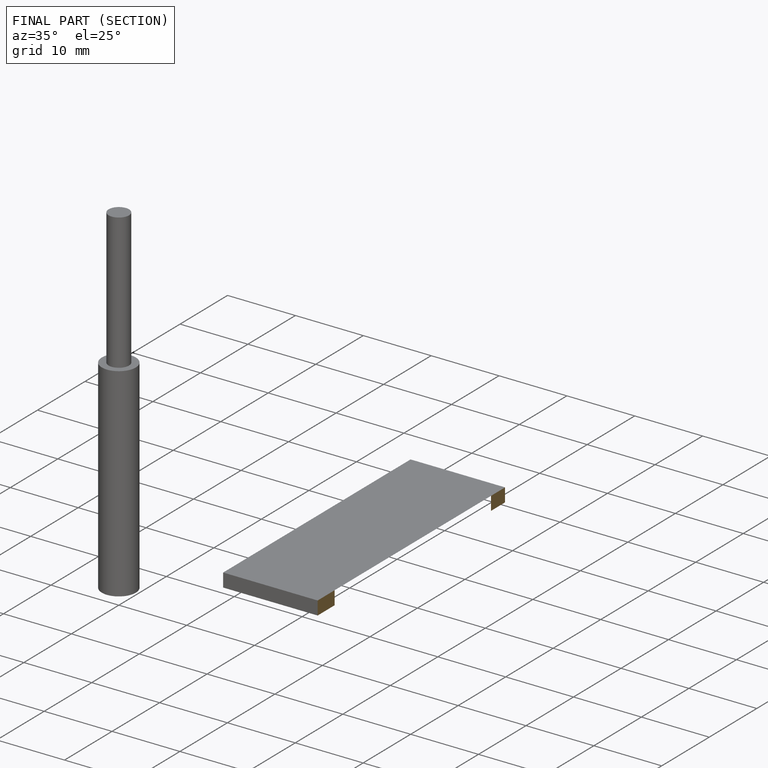
[diagram: finished part — half-section view (interior)]
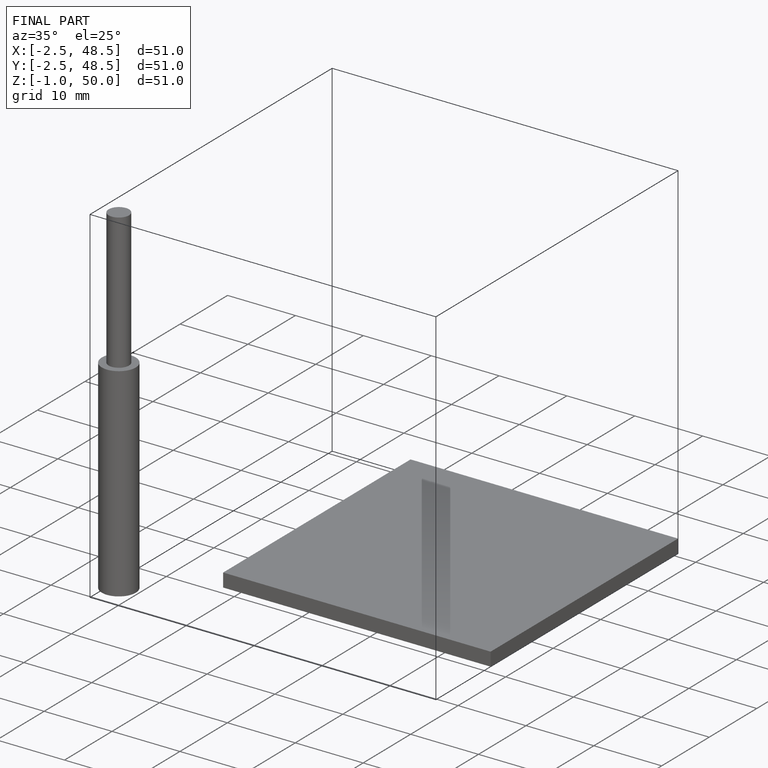
[diagram: finished part — iso view with bounding-box wireframe]
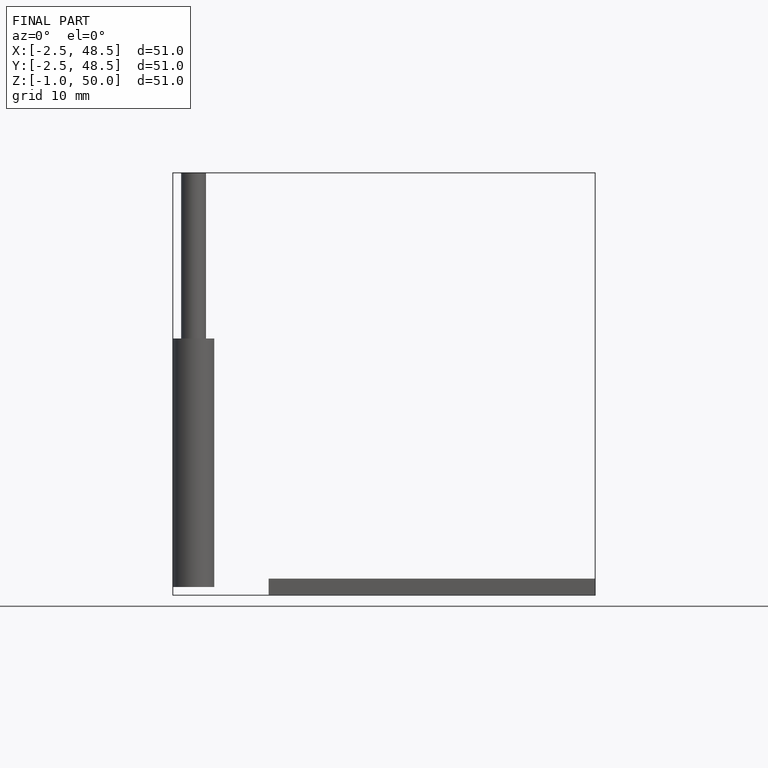
[diagram: finished part — front view with bounding-box wireframe]
